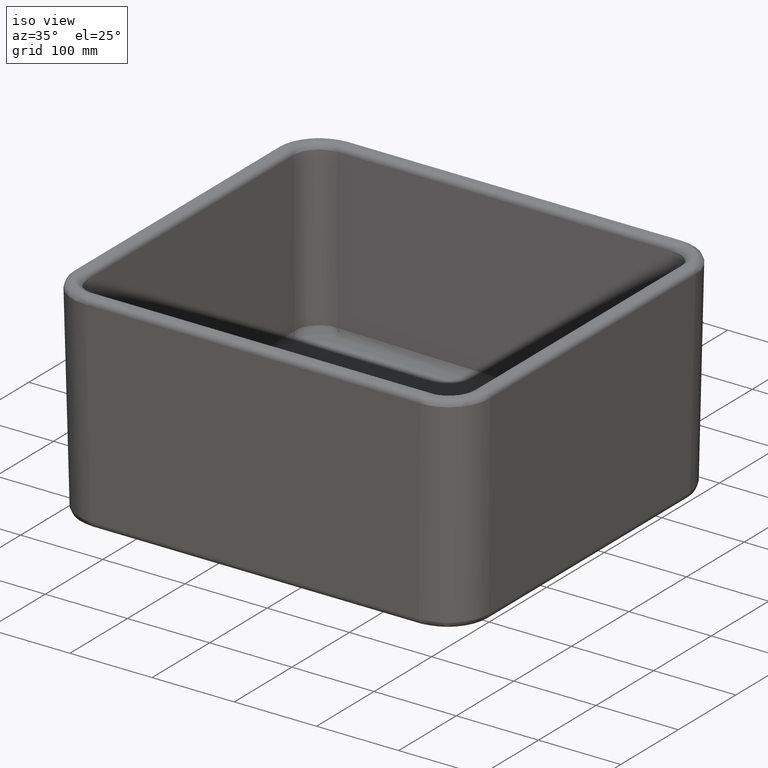
[diagram: clean part render]
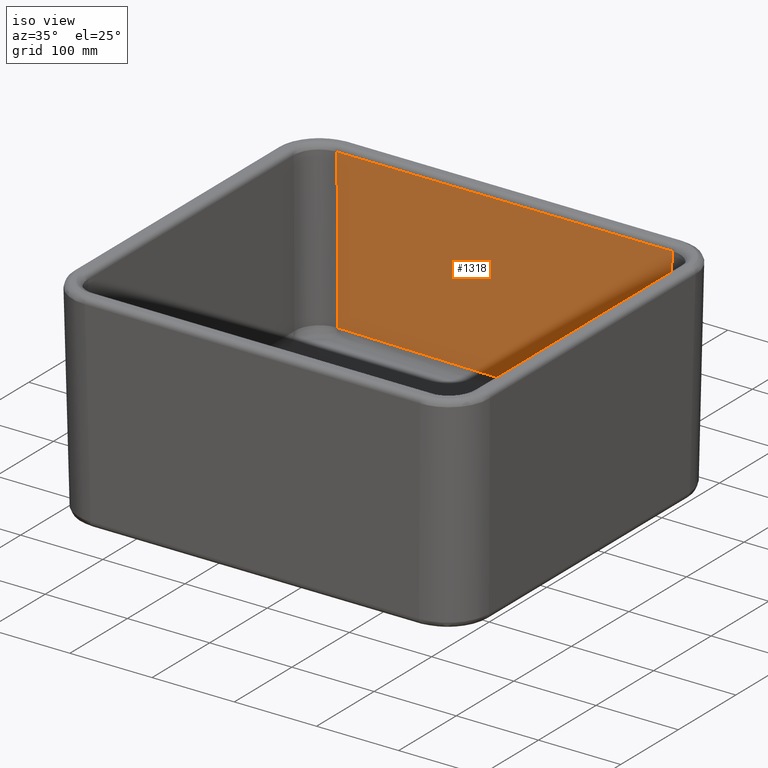
[diagram: same view with one face highlighted and labeled with its STEP entity id]
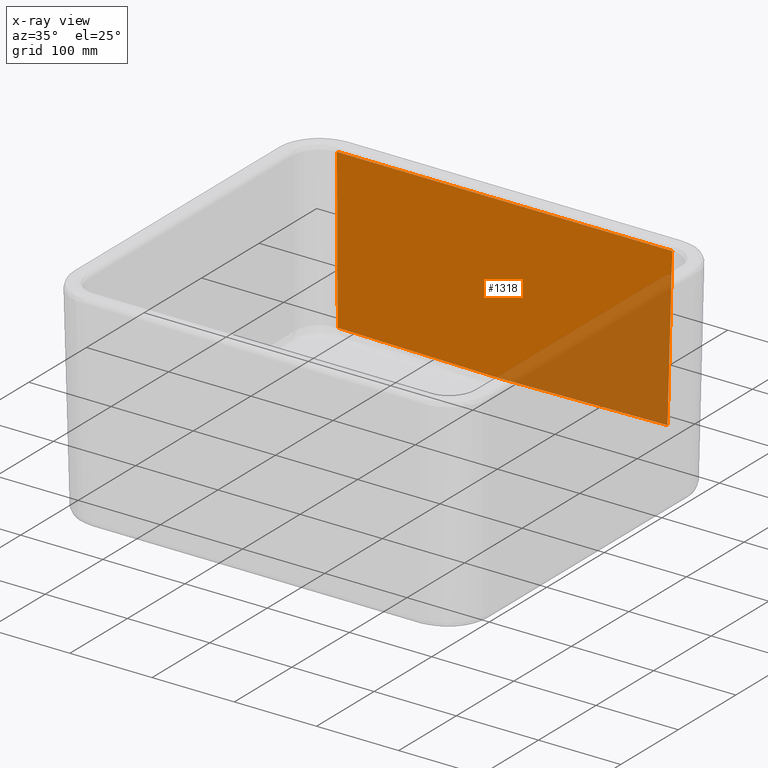
[diagram: x-ray of the same camera — body ghosted, the highlighted face saturated]
A machine part, iso view. The second image highlights one B-rep face of the part: STEP entity #1318.
The next image is the same camera in x-ray: the body ghosted, the highlighted face saturated — about 23% of this face is hidden behind the body in this view.
In plain terms, the highlighted planar face has unit normal (0, 0.9998, -0.0175).
Its self-contained STEP definition (entity closure, byte-faithful):
#871=FACE_OUTER_BOUND('',#1837,.T.);
#1318=ADVANCED_FACE('',(#871),#1737,.F.);
#1737=PLANE('',#6940);
#1837=EDGE_LOOP('',(#3118,#3119,#3120,#3121));
#2358=B_SPLINE_CURVE_WITH_KNOTS('',3,(#10703,#10704,#10705,#10706,#10707,
#10708),.UNSPECIFIED.,.F.,.F.,(4,2,4),(0.,0.5,1.),.UNSPECIFIED.);
#3118=ORIENTED_EDGE('',*,*,#5728,.F.);
#3119=ORIENTED_EDGE('',*,*,#5729,.F.);
#3120=ORIENTED_EDGE('',*,*,#5730,.F.);
#3121=ORIENTED_EDGE('',*,*,#5731,.F.);
#5098=VERTEX_POINT('',#10701);
#5099=VERTEX_POINT('',#10702);
#5100=VERTEX_POINT('',#10709);
#5101=VERTEX_POINT('',#10711);
#5728=EDGE_CURVE('',#5098,#5099,#6555,.T.);
#5729=EDGE_CURVE('',#5100,#5098,#2358,.T.);
#5730=EDGE_CURVE('',#5101,#5100,#6556,.T.);
#5731=EDGE_CURVE('',#5099,#5101,#6557,.T.);
#6555=LINE('',#10700,#6750);
#6556=LINE('',#10710,#6751);
#6557=LINE('',#10712,#6752);
#6750=VECTOR('',#7749,1.);
#6751=VECTOR('',#7750,1.);
#6752=VECTOR('',#7751,1.);
#6940=AXIS2_PLACEMENT_3D('',#10713,#7752,#7753);
#7749=DIRECTION('',(-0.0174497491606827,0.0174497491606827,0.999695459881888));
#7750=DIRECTION('',(-0.0174497491606827,-0.0174497491606827,-0.999695459881888));
#7751=DIRECTION('',(1.,0.,0.));
#7752=DIRECTION('',(0.,0.999847695156391,-0.0174524064372835));
#7753=DIRECTION('',(0.,-0.0174524064372835,-0.999847695156391));
#10700=CARTESIAN_POINT('',(176.946512790853,438.24810837401,2.75612690115796));
#10701=CARTESIAN_POINT('',(180.443090438254,434.751530726609,-197.562672357422));
#10702=CARTESIAN_POINT('',(177.106098973128,438.088522191735,-6.38655935815766));
#10703=CARTESIAN_POINT('',(581.556909561745,434.751530726609,-197.562672357422));
#10704=CARTESIAN_POINT('',(514.711771248639,434.722385322328,-199.232411450402));
#10705=CARTESIAN_POINT('',(447.852665689372,434.700053027704,-200.511827752516));
#10706=CARTESIAN_POINT('',(314.118691396744,434.700058986173,-200.511486392063));
#10707=CARTESIAN_POINT('',(247.277029306542,434.722390205441,-199.232131697061));
#10708=CARTESIAN_POINT('',(180.443090438254,434.751530726609,-197.562672357422));
#10709=CARTESIAN_POINT('',(581.556909561745,434.751530726609,-197.562672357422));
#10710=CARTESIAN_POINT('',(581.514443541218,434.709064706081,-199.995549044072));
#10711=CARTESIAN_POINT('',(584.893901026873,438.088522191735,-6.38655935815765));
#10712=CARTESIAN_POINT('',(19.,438.088522191735,-6.38655935815766));
#10713=CARTESIAN_POINT('',(19.,438.2,0.));